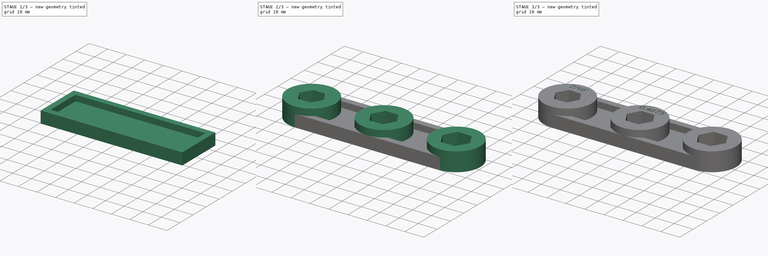
[diagram: build sequence overview — one tinted view per stage of 3, left to right]
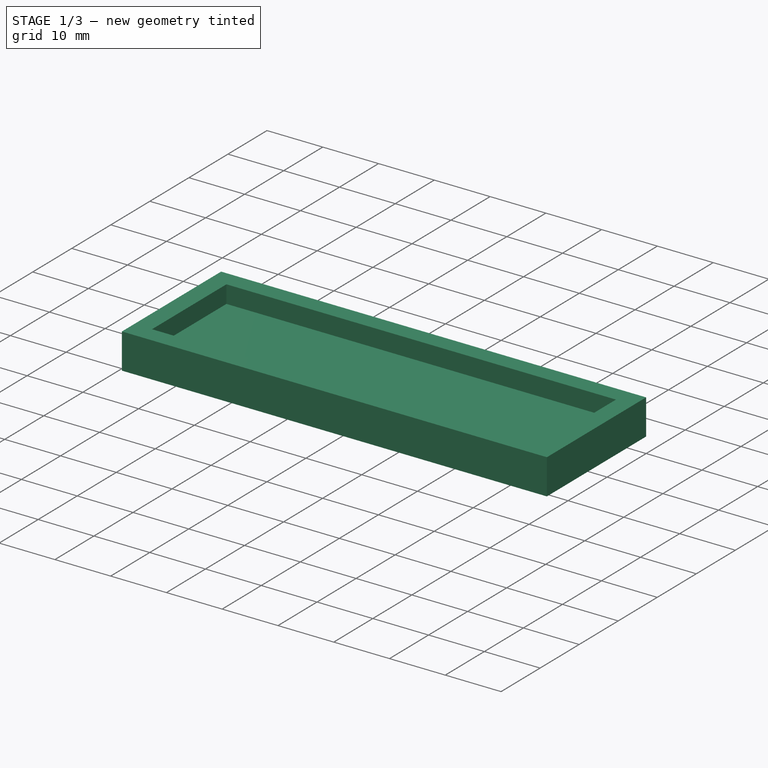
[diagram: stage 1 of 3 — iso view after this stage's code; geometry added in this stage tinted green]
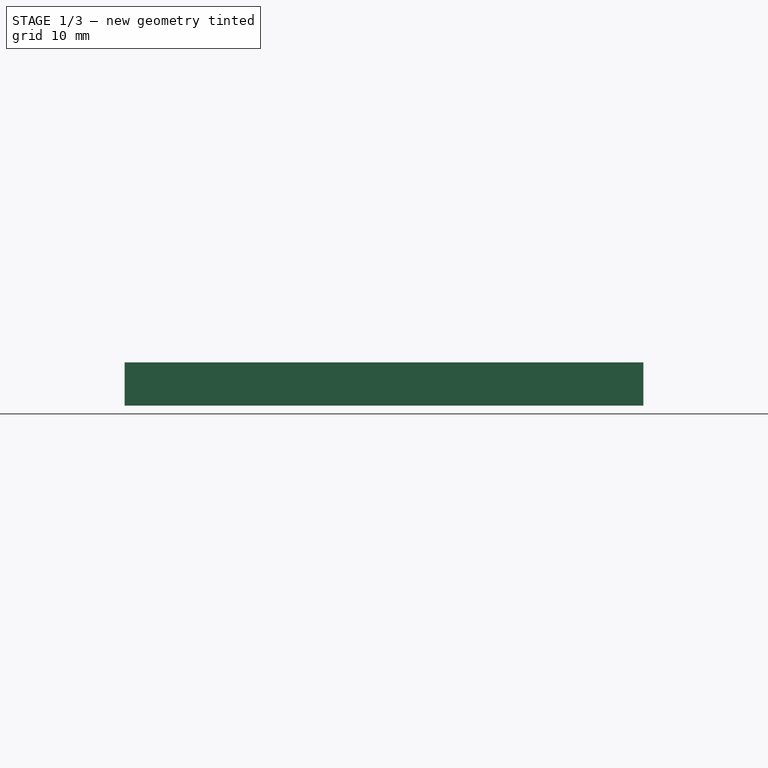
[diagram: stage 1 of 3 — front view after this stage's code; geometry added in this stage tinted green]
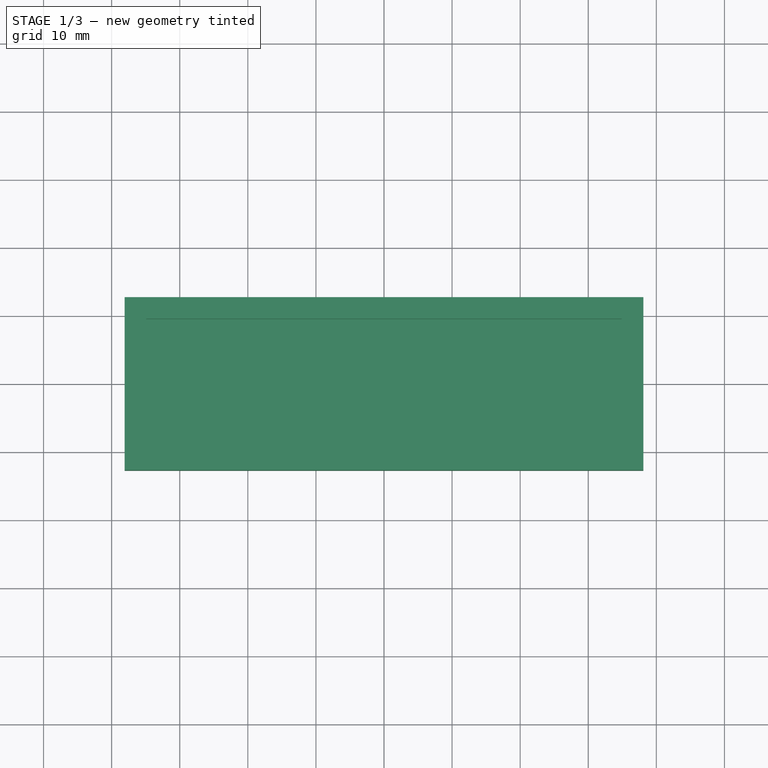
[diagram: stage 1 of 3 — top view after this stage's code; geometry added in this stage tinted green]
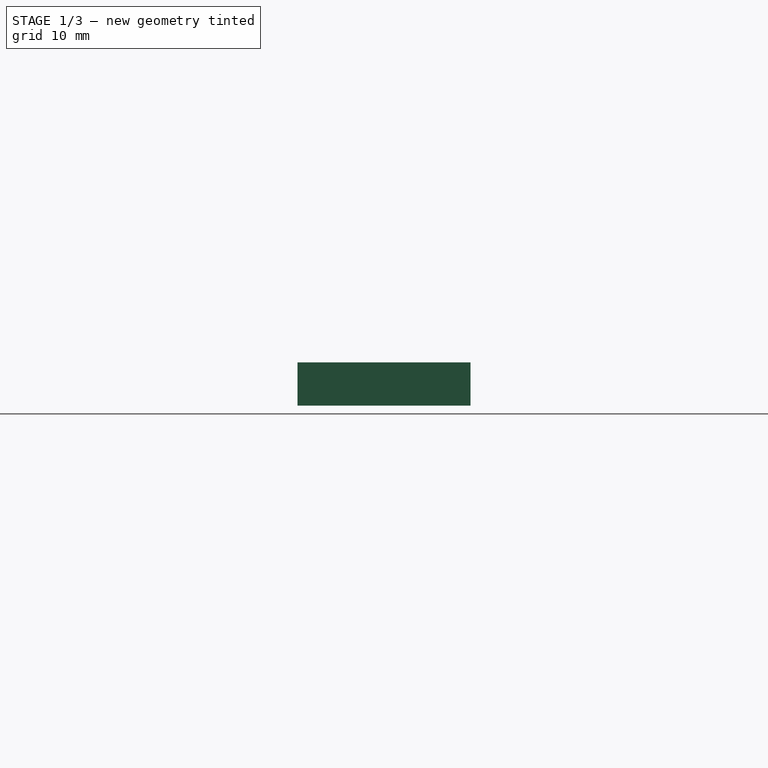
[diagram: stage 1 of 3 — right view after this stage's code; geometry added in this stage tinted green]
FCSTD DOCUMENT  (FreeCAD 0.19R24291 (Git))
Label: HexBoltPlate
License: All rights reserved
LicenseURL: http://en.wikipedia.org/wiki/All_rights_reserved
objects: Sketcher::SketchObject×5, PartDesign::Pocket×4, PartDesign::Pad×3, Part::Part2DObjectPython×2, PartDesign::Body×1, App::Part×1
note: 22 computed .brp shape members not serialized (recipe doc carries the construction recipe); baked Part::Feature solids carry a one-line shape summary decoded from their .brp

FEATURE [Sketcher::SketchObject] Sketch
  FullyConstrained = true
  MapMode = 5
  Support = -> [XY_Plane001]
  sketch-geometry (4):
    g0: LineSegment StartX=-38.1 StartY=12.7 StartZ=0 EndX=38.1 EndY=12.7 EndZ=0
    g1: LineSegment StartX=38.1 StartY=12.7 StartZ=0 EndX=38.1 EndY=-12.7 EndZ=0
    g2: LineSegment StartX=38.1 StartY=-12.7 StartZ=0 EndX=-38.1 EndY=-12.7 EndZ=0
    g3: LineSegment StartX=-38.1 StartY=-12.7 StartZ=0 EndX=-38.1 EndY=12.7 EndZ=0
  constraints (11):
    c: Coincident(g0,g1)
    c: Coincident(g1,g2)
    c: Coincident(g2,g3)
    c: Coincident(g3,g0)
    c: Horizontal(g0)
    c: Horizontal(g2)
    c: Vertical(g1)
    c: Vertical(g3)
    c: Symmetric(g0,g1,g-1)
    c: DistanceY(g2,g0) = 25.4
    c: DistanceX(g0,g0) = 76.2
FEATURE [PartDesign::Pad] Pad  label="PadBase"
  Direction = (1,1,1)
  Length = 3.175
  Length2 = 100.076
  Profile = -> Sketch
  Type = 0
FEATURE [Sketcher::SketchObject] Sketch001
  FullyConstrained = true
  MapMode = 5
  Support = -> [XY_Plane001]
  sketch-geometry (8):
    g0: LineSegment StartX=-38.1 StartY=12.7 StartZ=0 EndX=38.1 EndY=12.7 EndZ=0
    g1: LineSegment StartX=38.1 StartY=12.7 StartZ=0 EndX=38.1 EndY=-12.7 EndZ=0
    g2: LineSegment StartX=38.1 StartY=-12.7 StartZ=0 EndX=-38.1 EndY=-12.7 EndZ=0
    g3: LineSegment StartX=-38.1 StartY=-12.7 StartZ=0 EndX=-38.1 EndY=12.7 EndZ=0
    g4: LineSegment StartX=-34.925 StartY=9.525 StartZ=0 EndX=34.925 EndY=9.525 EndZ=0
    g5: LineSegment StartX=34.925 StartY=9.525 StartZ=0 EndX=34.925 EndY=-9.525 EndZ=0
    g6: LineSegment StartX=34.925 StartY=-9.525 StartZ=0 EndX=-34.925 EndY=-9.525 EndZ=0
    g7: LineSegment StartX=-34.925 StartY=-9.525 StartZ=0 EndX=-34.925 EndY=9.525 EndZ=0
  constraints (22):
    c: Coincident(g0,g1)
    c: Coincident(g1,g2)
    c: Coincident(g2,g3)
    c: Coincident(g3,g0)
    c: Horizontal(g0)
    c: Horizontal(g2)
    c: Vertical(g1)
    c: Vertical(g3)
    c: Coincident(g4,g5)
    c: Coincident(g5,g6)
    c: Coincident(g6,g7)
    c: Coincident(g7,g4)
    c: Horizontal(g4)
    c: Horizontal(g6)
    c: Vertical(g5)
    c: Vertical(g7)
    c: Symmetric(g4,g5,g-1)
    c: Symmetric(g0,g1,g-1)
    c: DistanceX(g0,g4) = 3.175
    c: DistanceY(g4,g0) = 3.175
    c: DistanceY(g2,g0) = 25.4
    c: DistanceX(g0,g0) = 76.2
FEATURE [PartDesign::Pad] Pad001  label="PadPermiter"
  BaseFeature = -> Pad
  Direction = (1,1,1)
  Length = 6.35
  Length2 = 100.076
  Profile = -> Sketch001
  Type = 0
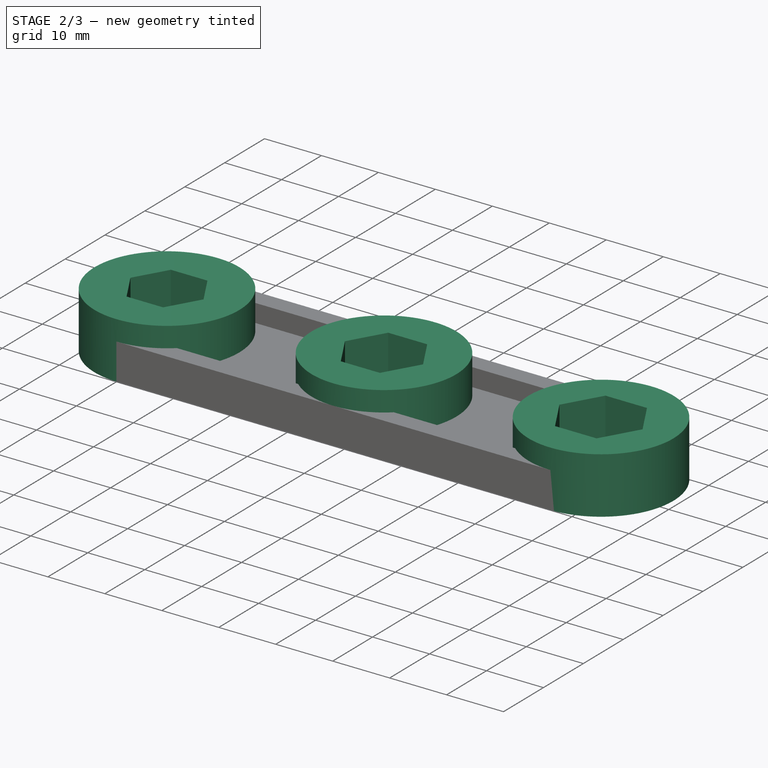
[diagram: stage 2 of 3 — iso view after this stage's code; geometry added in this stage tinted green]
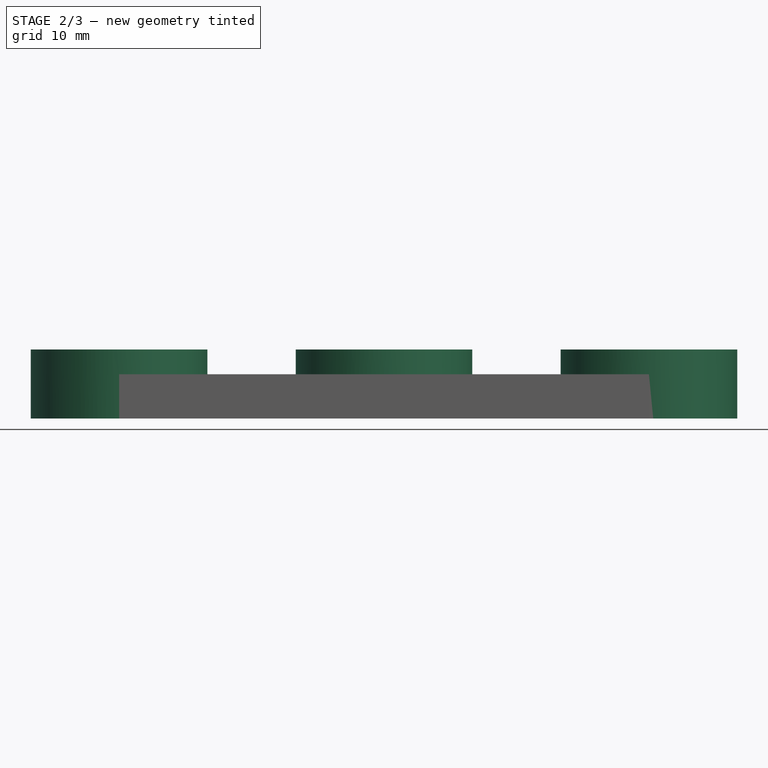
[diagram: stage 2 of 3 — front view after this stage's code; geometry added in this stage tinted green]
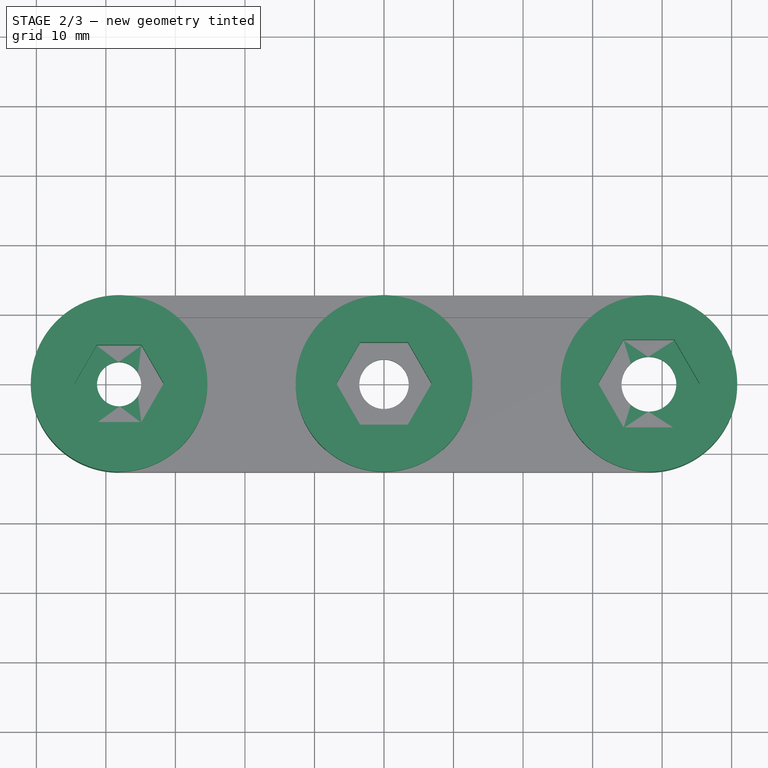
[diagram: stage 2 of 3 — top view after this stage's code; geometry added in this stage tinted green]
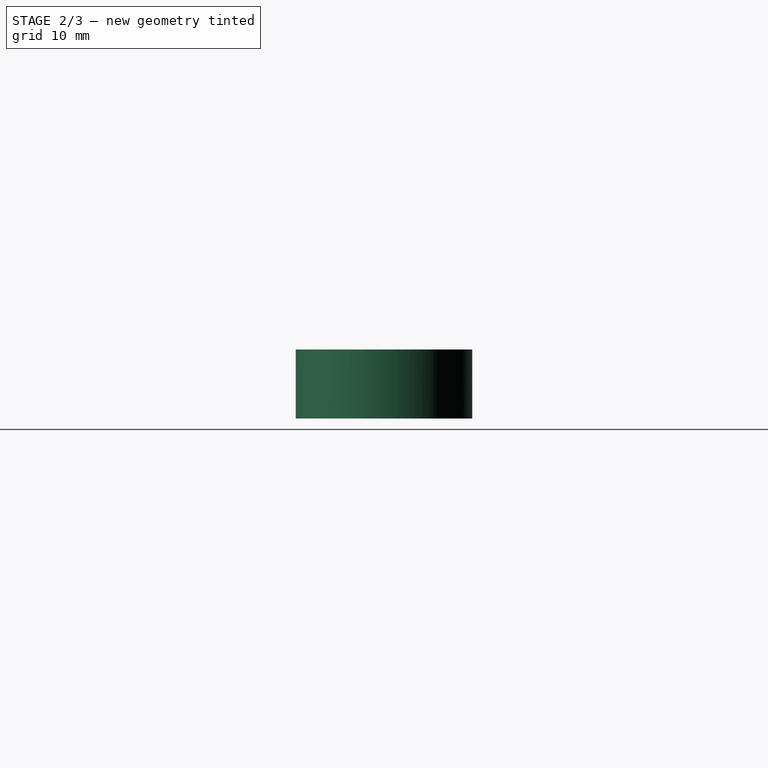
[diagram: stage 2 of 3 — right view after this stage's code; geometry added in this stage tinted green]
FEATURE [Sketcher::SketchObject] Sketch002
  FullyConstrained = true
  MapMode = 5
  Support = -> [XY_Plane001]
  sketch-geometry (3):
    g0: Circle CenterX=0 CenterY=0 CenterZ=0 NormalX=0 NormalY=0 NormalZ=1 AngleXU=0 Radius=12.7
    g1: Circle CenterX=-38.1 CenterY=0 CenterZ=0 NormalX=0 NormalY=0 NormalZ=1 AngleXU=0 Radius=12.7
    g2: Circle CenterX=38.1 CenterY=0 CenterZ=0 NormalX=0 NormalY=0 NormalZ=1 AngleXU=0 Radius=12.7
  constraints (8):
    c: Coincident(g0,g-1)
    c: PointOnObject(g1,g-1)
    c: PointOnObject(g2,g-1)
    c: Equal(g1,g0)
    c: Equal(g0,g2)
    c: Diameter(g1) = 25.4
    c: DistanceX(g1,g0) = 38.1
    c: DistanceX(g0,g2) = 38.1
FEATURE [PartDesign::Pad] Pad002  label="PadBoltBoss"
  BaseFeature = -> Pad001
  Direction = (1,1,1)
  Length = 9.906
  Length2 = 100.076
  Profile = -> Sketch002
  Type = 0
FEATURE [Sketcher::SketchObject] Sketch003
  AttachmentOffset = pos=(0,0,3.175) rot=(0,0,1;0rad)
  FullyConstrained = true
  MapMode = 5
  Placement = pos=(0,0,3.175) rot=(0,0,1;0rad)
  Support = -> [XY_Plane001]
  sketch-geometry (21):
    g0: LineSegment StartX=3.42787 StartY=-5.93725 StartZ=0 EndX=6.85575 EndY=9e-16 EndZ=0
    g1: LineSegment StartX=6.85575 StartY=9e-16 StartZ=0 EndX=3.42787 EndY=5.93725 EndZ=0
    g2: LineSegment StartX=3.42787 StartY=5.93725 StartZ=0 EndX=-3.42787 EndY=5.93725 EndZ=0
    g3: LineSegment StartX=-3.42787 StartY=5.93725 StartZ=0 EndX=-6.85575 EndY=9e-16 EndZ=0
    g4: LineSegment StartX=-6.85575 StartY=9e-16 StartZ=0 EndX=-3.42787 EndY=-5.93725 EndZ=0
    g5: LineSegment StartX=-3.42787 StartY=-5.93725 StartZ=0 EndX=3.42787 EndY=-5.93725 EndZ=0
    g6: Circle CenterX=0 CenterY=0 CenterZ=0 NormalX=0 NormalY=0 NormalZ=1 AngleXU=0 Radius=6.85575
    g7: LineSegment StartX=-34.8921 StartY=-5.55625 StartZ=0 EndX=-31.6842 EndY=0 EndZ=0
    g8: LineSegment StartX=-31.6842 StartY=0 StartZ=0 EndX=-34.8921 EndY=5.55625 EndZ=0
    g9: LineSegment StartX=-34.8921 StartY=5.55625 StartZ=0 EndX=-41.3079 EndY=5.55625 EndZ=0
    g10: LineSegment StartX=-41.3079 StartY=5.55625 StartZ=0 EndX=-44.5158 EndY=9e-16 EndZ=0
    g11: LineSegment StartX=-44.5158 StartY=9e-16 StartZ=0 EndX=-41.3079 EndY=-5.55625 EndZ=0
    g12: LineSegment StartX=-41.3079 StartY=-5.55625 StartZ=0 EndX=-34.8921 EndY=-5.55625 EndZ=0
    g13: Circle CenterX=-38.1 CenterY=0 CenterZ=0 NormalX=0 NormalY=0 NormalZ=1 AngleXU=0 Radius=6.4158
    g14: LineSegment StartX=34.4522 StartY=6.31825 StartZ=0 EndX=30.8043 EndY=0 EndZ=0
    g15: LineSegment StartX=30.8043 StartY=0 StartZ=0 EndX=34.4522 EndY=-6.31825 EndZ=0
    g16: LineSegment StartX=34.4522 StartY=-6.31825 StartZ=0 EndX=41.7478 EndY=-6.31825 EndZ=0
    g17: LineSegment StartX=41.7478 StartY=-6.31825 StartZ=0 EndX=45.3957 EndY=0 EndZ=0
    g18: LineSegment StartX=45.3957 StartY=-2e-16 StartZ=0 EndX=41.7478 EndY=6.31825 EndZ=0
    g19: LineSegment StartX=41.7478 StartY=6.31825 StartZ=0 EndX=34.4522 EndY=6.31825 EndZ=0
    g20: Circle CenterX=38.1 CenterY=0 CenterZ=0 NormalX=0 NormalY=0 NormalZ=1 AngleXU=0 Radius=7.29569
  constraints (50):
    c: Coincident(g0,g1)
    c: Coincident(g1,g2)
    c: Coincident(g2,g3)
    c: Coincident(g3,g4)
    c: Coincident(g4,g5)
    c: Coincident(g5,g0)
    c: Equal(g0, g1-g5) x5
    c: PointOnObject(g0,g6)
    c: PointOnObject(g1,g6)
    c: PointOnObject(g2,g6)
    c: PointOnObject(g3,g6)
    c: PointOnObject(g4,g6)
    c: PointOnObject(g5,g6)
    c: Coincident(g6,g-1)
    c: Coincident(g7,g8)
    c: Coincident(g8,g9)
    c: Coincident(g9,g10)
    c: Coincident(g10,g11)
    c: Coincident(g11,g12)
    c: Coincident(g12,g7)
    c: Equal(g7, g8-g12) x5
    c: PointOnObject(g7,g13)
    c: PointOnObject(g8,g13)
    c: PointOnObject(g9,g13)
    c: PointOnObject(g10,g13)
    c: PointOnObject(g11,g13)
    c: PointOnObject(g12,g13)
    c: PointOnObject(g13,g-1)
    c: Coincident(g14,g15)
    c: Coincident(g15,g16)
    c: Coincident(g16,g17)
    c: Coincident(g17,g18)
    c: Coincident(g18,g19)
    c: Coincident(g19,g14)
    c: Equal(g14, g15-g19) x5
    c: PointOnObject(g14,g20)
    c: PointOnObject(g15,g20)
    c: PointOnObject(g16,g20)
    c: PointOnObject(g17,g20)
    c: PointOnObject(g18,g20)
    c: PointOnObject(g19,g20)
    c: PointOnObject(g20,g-1)
    c: DistanceX(g13,g-1) = 38.1
    c: DistanceX(g-1,g20) = 38.1
    c: Horizontal(g9)
    c: Horizontal(g2)
    c: Horizontal(g19)
    c: DistanceY(g11,g9) = 11.1125
    c: DistanceY(g4,g2) = 11.8745
    c: DistanceY(g15,g14) = 12.6365
FEATURE [PartDesign::Pocket] Pocket  label="PocketHex"
  BaseFeature = -> Pad002
  Length = 3.556
  Length2 = 100.076
  Profile = -> Sketch003
  Reversed = true
  Type = 1
FEATURE [Sketcher::SketchObject] Sketch004
  FullyConstrained = true
  MapMode = 5
  Support = -> [XY_Plane001]
  sketch-geometry (3):
    g0: Circle CenterX=0 CenterY=0 CenterZ=0 NormalX=0 NormalY=0 NormalZ=1 AngleXU=0 Radius=3.556
    g1: Circle CenterX=-38.1 CenterY=0 CenterZ=0 NormalX=0 NormalY=0 NormalZ=1 AngleXU=0 Radius=3.175
    g2: Circle CenterX=38.1 CenterY=0 CenterZ=0 NormalX=0 NormalY=0 NormalZ=1 AngleXU=0 Radius=3.937
  constraints (8):
    c: Coincident(g0,g-1)
    c: PointOnObject(g1,g-1)
    c: PointOnObject(g2,g-1)
    c: DistanceX(g1,g0) = 38.1
    c: DistanceX(g0,g2) = 38.1
    c: Diameter(g1) = 6.35
    c: Diameter(g0) = 7.112
    c: Diameter(g2) = 7.874
FEATURE [PartDesign::Pocket] Pocket001  label="PocketBolt"
  BaseFeature = -> Pocket
  Length = 5.08
  Length2 = 100.076
  Profile = -> Sketch004
  Reversed = true
  Type = 1
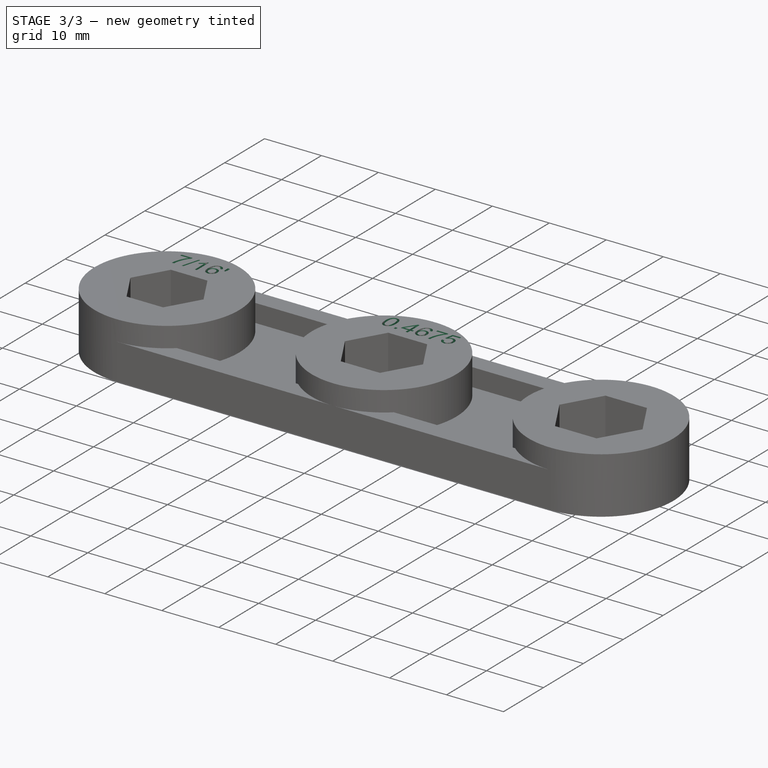
[diagram: stage 3 of 3 — iso view after this stage's code; geometry added in this stage tinted green]
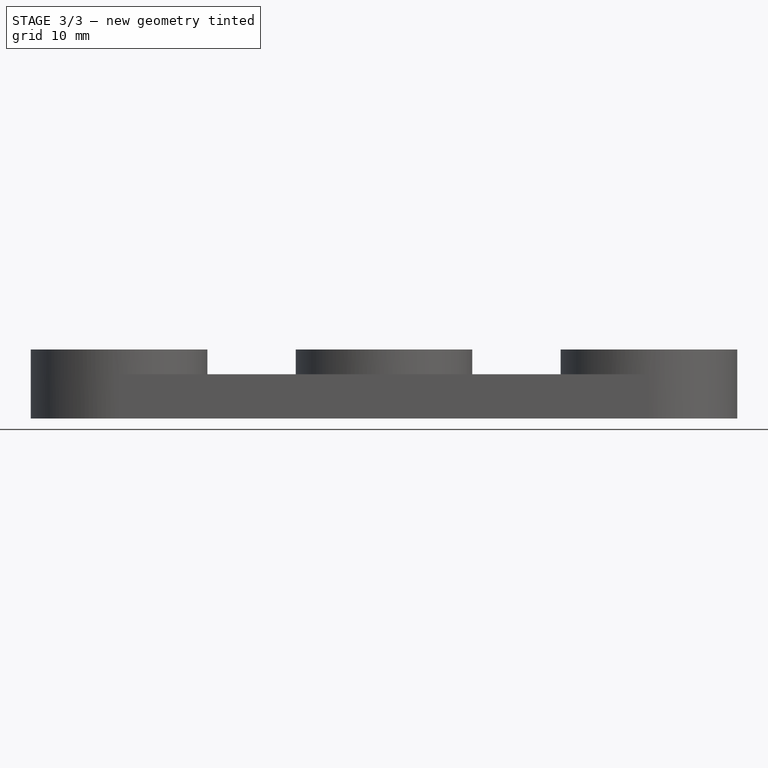
[diagram: stage 3 of 3 — front view after this stage's code; geometry added in this stage tinted green]
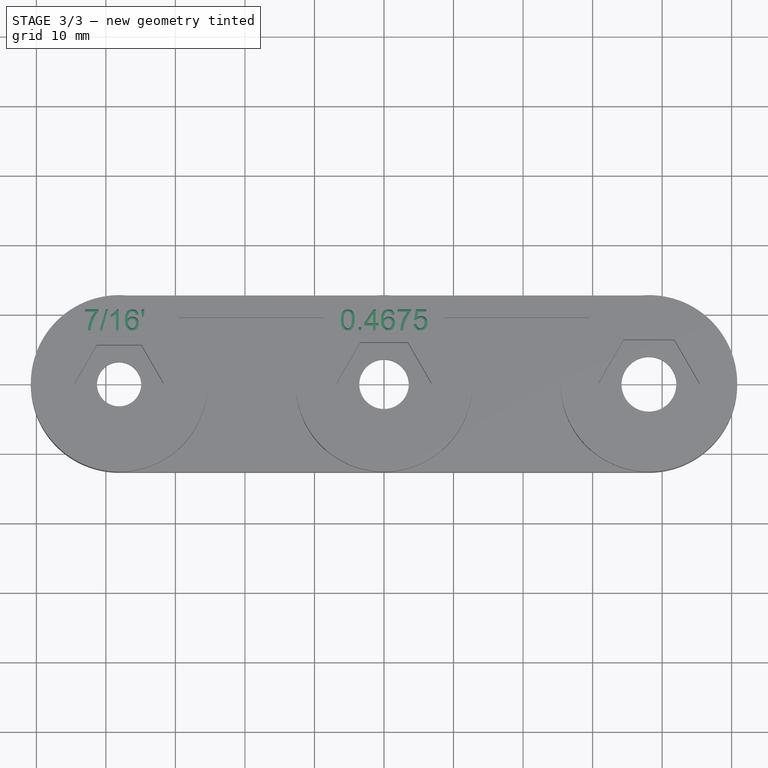
[diagram: stage 3 of 3 — top view after this stage's code; geometry added in this stage tinted green]
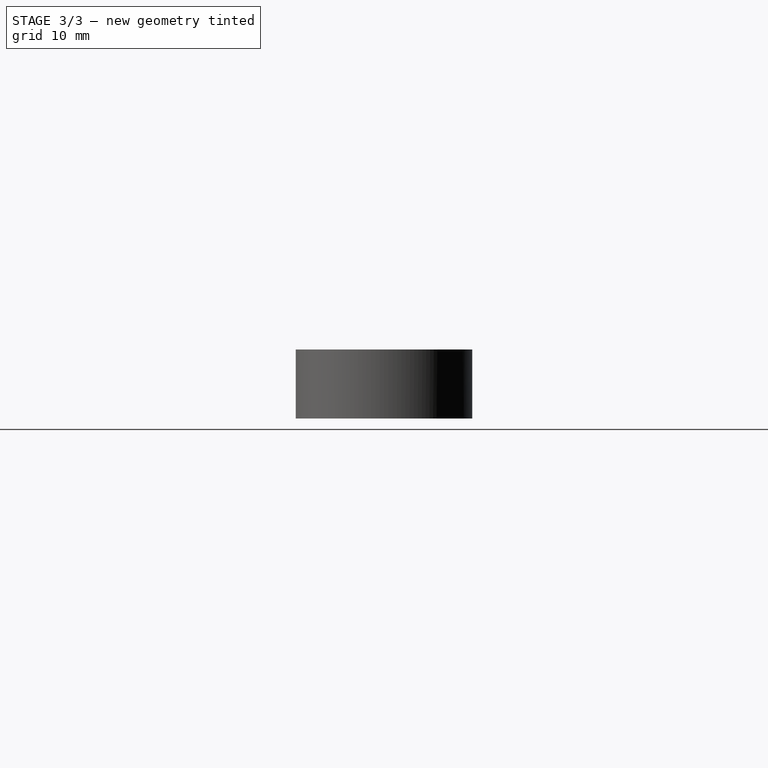
[diagram: stage 3 of 3 — right view after this stage's code; geometry added in this stage tinted green]
FEATURE [Part::Part2DObjectPython] ShapeString  # Draft 2D object (typed FeaturePython)
  FontFile = <path>
  Placement = pos=(-43.18,7.62,3.175) rot=(0,0,1;0rad)
  Size = 3.175
  String = 7/16'
  Tracking = 0
FEATURE [PartDesign::Pocket] Pocket002  label="Pocket7/16"
  BaseFeature = -> Pocket001
  Length = 5.08
  Length2 = 100.076
  Profile = -> ShapeString
  Reversed = true
  Type = 1
FEATURE [Part::Part2DObjectPython] ShapeString001  # Draft 2D object (typed FeaturePython)
  FontFile = <path>
  Placement = pos=(-6.35,7.62,3.302) rot=(0,0,1;0rad)
  Size = 3.175
  String = 0.4675
  Tracking = 0
FEATURE [PartDesign::Pocket] Pocket003  label="Pocket030over"
  BaseFeature = -> Pocket002
  Length = 5.08
  Length2 = 100.076
  Profile = -> ShapeString001
  Reversed = true
  Type = 1
FEATURE [PartDesign::Body] Body
  Group = -> [Sketch,Pad,Sketch001,Pad001,Sketch002,Pad002,Sketch003,Pocket,Sketch004,Pocket001,ShapeString,Pocket002,ShapeString001,Pocket003]
  Origin = -> Origin001
  Tip = -> Pocket003
FEATURE [App::Part] Part
  Group = -> [Body]
  Origin = -> Origin
note: 2 file-system paths scrubbed to <path> (originals preserved in the JSON sidecar)
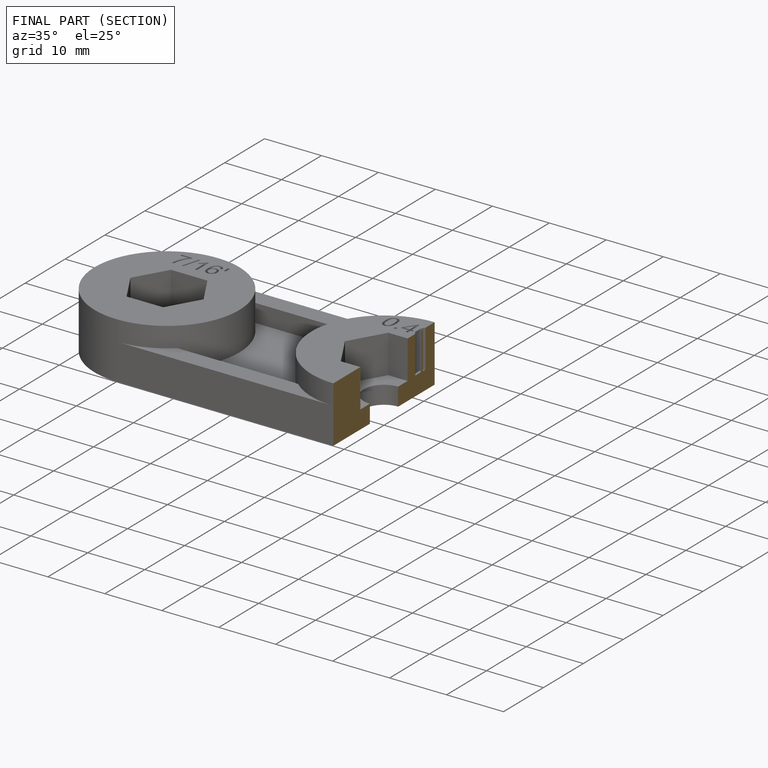
[diagram: finished part — half-section view (interior)]
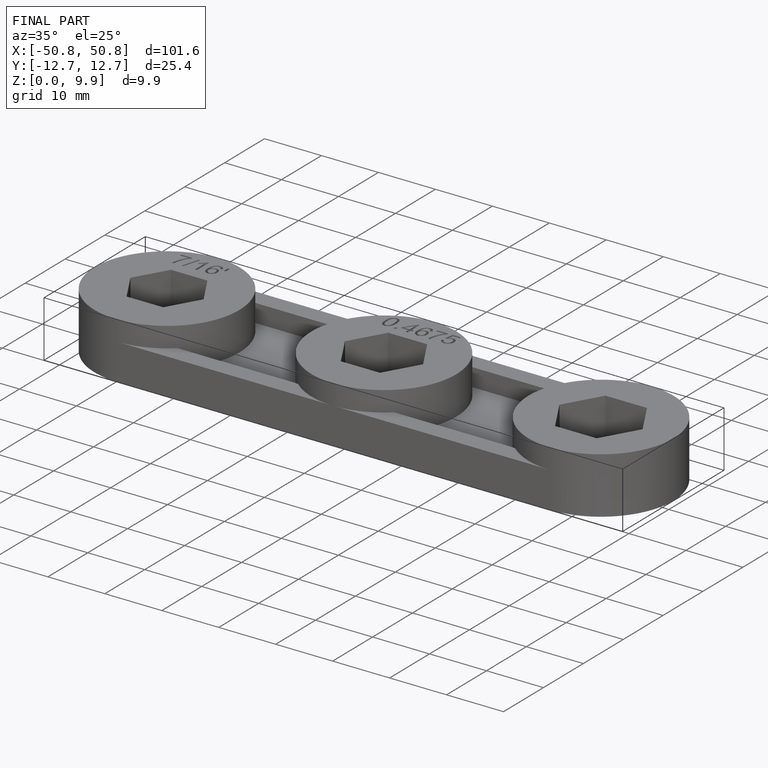
[diagram: finished part — iso view with bounding-box wireframe]
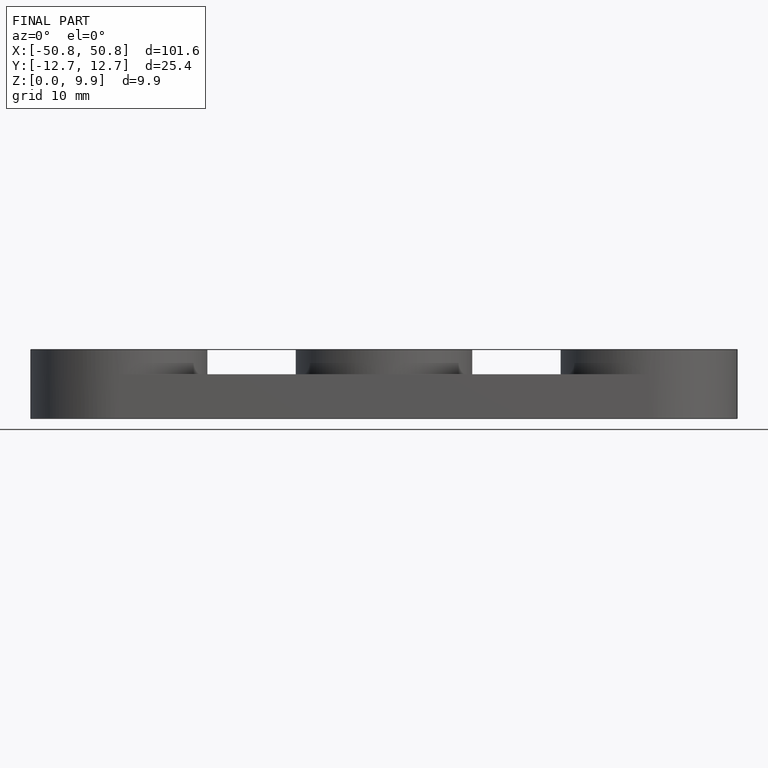
[diagram: finished part — front view with bounding-box wireframe]
